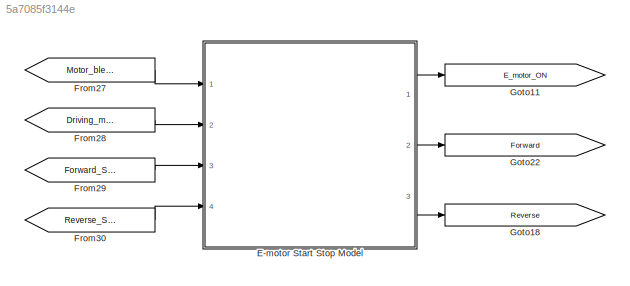
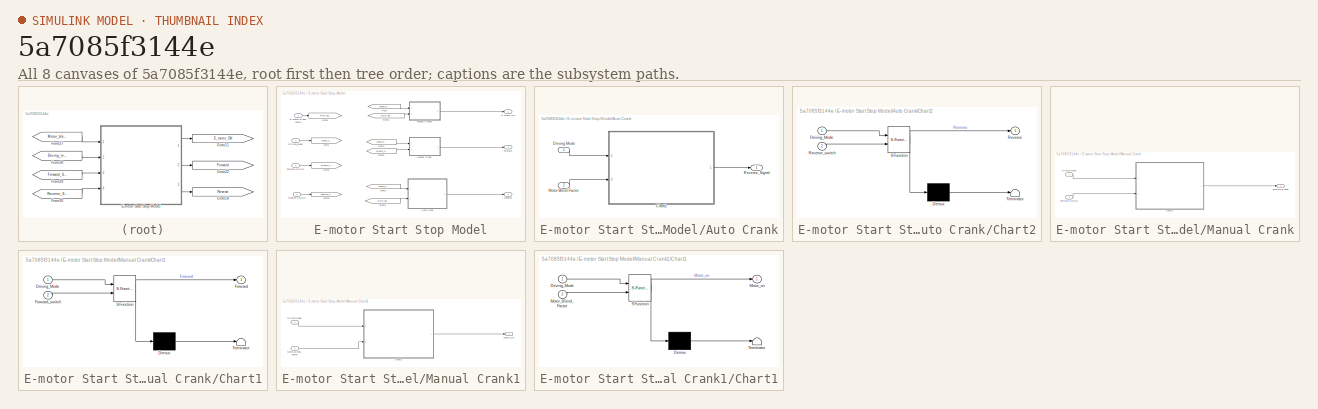
[diagram: thumbnail index - all 8 canvases of the model, root first then tree order]
MODEL slx_5a7085f3144e
KIND model
CONFIG AbsTol = auto
CONFIG FixedStep = auto
CONFIG MaxStep = auto
CONFIG MinStep = auto
CONFIG RelTol = 1e-3
CONFIG SampleTimeConstraint = Unconstrained
CONFIG Solver = ode45
CONFIG SolverMode = Auto
CONFIG SolverName = ode45
CONFIG StartTime = 0.0
CONFIG StopTime = 10.0
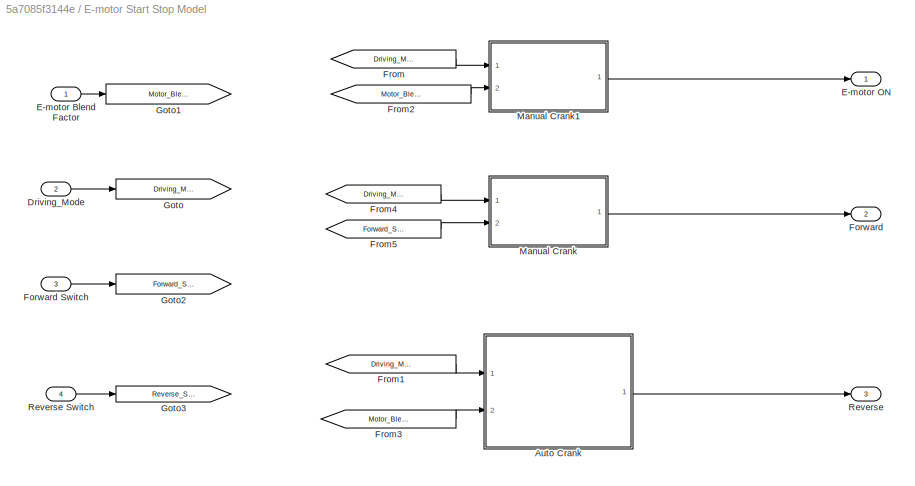
BLOCK [SubSystem] E-motor Start Stop Model
  Ports = [4, 3]
  RequestExecContextInheritance = off
BLOCK [SubSystem] E-motor Start Stop Model/Auto Crank
  Ports = [2, 1]
  RequestExecContextInheritance = off
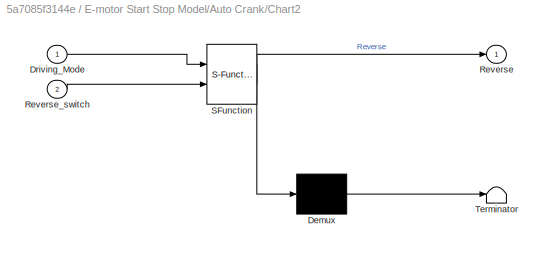
BLOCK [SubSystem] E-motor Start Stop Model/Auto Crank/Chart2
  ErrorFcn = Stateflow.Translate.translate
  PermitHierarchicalResolution = ExplicitOnly
  Ports = [2, 1]
  RequestExecContextInheritance = off
  SFBlockType = Chart
  TreatAsAtomicUnit = on
BLOCK [Demux] E-motor Start Stop Model/Auto Crank/Chart2/ Demux 
  Outputs = 1
  Ports = [1, 1]
BLOCK [S-Function] E-motor Start Stop Model/Auto Crank/Chart2/ SFunction 
  EnableBusSupport = on
  FunctionName = sf_sfun
  PortCounts = [2 2]
  Ports = [2, 2]
  Tag = Stateflow S-Function validate_emotor_start_stop 2
BLOCK [Terminator] E-motor Start Stop Model/Auto Crank/Chart2/ Terminator 
BLOCK [Inport] E-motor Start Stop Model/Auto Crank/Chart2/Driving_Mode
  IconDisplay = Port number
BLOCK [Outport] E-motor Start Stop Model/Auto Crank/Chart2/Reverse
  IconDisplay = Port number
BLOCK [Inport] E-motor Start Stop Model/Auto Crank/Chart2/Reverse_switch
  IconDisplay = Port number
  Port = 2
BLOCK [Inport] E-motor Start Stop Model/Auto Crank/Driving Mode
  IconDisplay = Port number
BLOCK [Inport] E-motor Start Stop Model/Auto Crank/Motor Blend Factor
  IconDisplay = Port number
  Port = 2
BLOCK [Outport] E-motor Start Stop Model/Auto Crank/Reverse_Signal
  IconDisplay = Port number
BLOCK [Inport] E-motor Start Stop Model/Driving_Mode
  IconDisplay = Port number
  Port = 2
BLOCK [Inport] E-motor Start Stop Model/E-motor Blend Factor
  IconDisplay = Port number
BLOCK [Outport] E-motor Start Stop Model/E-motor ON
  IconDisplay = Port number
BLOCK [Outport] E-motor Start Stop Model/Forward
  IconDisplay = Port number
  Port = 2
BLOCK [Inport] E-motor Start Stop Model/Forward Switch
  IconDisplay = Port number
  Port = 3
BLOCK [From] E-motor Start Stop Model/From
  GotoTag = Driving_Mode
BLOCK [From] E-motor Start Stop Model/From1
  GotoTag = Driving_Mode
BLOCK [From] E-motor Start Stop Model/From2
  GotoTag = Motor_Blend_Factor
BLOCK [From] E-motor Start Stop Model/From3
  GotoTag = Motor_Blend_Factor
BLOCK [From] E-motor Start Stop Model/From4
  GotoTag = Driving_Mode
BLOCK [From] E-motor Start Stop Model/From5
  GotoTag = Forward_Switch
BLOCK [Goto] E-motor Start Stop Model/Goto
  GotoTag = Driving_Mode
BLOCK [Goto] E-motor Start Stop Model/Goto1
  GotoTag = Motor_Blend_Factor
BLOCK [Goto] E-motor Start Stop Model/Goto2
  GotoTag = Forward_Switch
BLOCK [Goto] E-motor Start Stop Model/Goto3
  GotoTag = Reverse_Switch
BLOCK [SubSystem] E-motor Start Stop Model/Manual Crank
  Ports = [2, 1]
  RequestExecContextInheritance = off
BLOCK [SubSystem] E-motor Start Stop Model/Manual Crank/Chart1
  ErrorFcn = Stateflow.Translate.translate
  PermitHierarchicalResolution = ExplicitOnly
  Ports = [2, 1]
  RequestExecContextInheritance = off
  SFBlockType = Chart
  TreatAsAtomicUnit = on
BLOCK [Demux] E-motor Start Stop Model/Manual Crank/Chart1/ Demux 
  Outputs = 1
  Ports = [1, 1]
BLOCK [S-Function] E-motor Start Stop Model/Manual Crank/Chart1/ SFunction 
  EnableBusSupport = on
  FunctionName = sf_sfun
  PortCounts = [2 2]
  Ports = [2, 2]
  Tag = Stateflow S-Function validate_emotor_start_stop 5
BLOCK [Terminator] E-motor Start Stop Model/Manual Crank/Chart1/ Terminator 
BLOCK [Inport] E-motor Start Stop Model/Manual Crank/Chart1/Driving_Mode
  IconDisplay = Port number
BLOCK [Outport] E-motor Start Stop Model/Manual Crank/Chart1/Forward
  IconDisplay = Port number
BLOCK [Inport] E-motor Start Stop Model/Manual Crank/Chart1/Forward_switch
  IconDisplay = Port number
  Port = 2
BLOCK [Inport] E-motor Start Stop Model/Manual Crank/Driving Mode
  IconDisplay = Port number
BLOCK [Inport] E-motor Start Stop Model/Manual Crank/Forward Switch
  IconDisplay = Port number
  Port = 2
BLOCK [Outport] E-motor Start Stop Model/Manual Crank/Forward_Signal
  IconDisplay = Port number
BLOCK [SubSystem] E-motor Start Stop Model/Manual Crank1
  Ports = [2, 1]
  RequestExecContextInheritance = off
BLOCK [SubSystem] E-motor Start Stop Model/Manual Crank1/Chart1
  ErrorFcn = Stateflow.Translate.translate
  PermitHierarchicalResolution = ExplicitOnly
  Ports = [2, 1]
  RequestExecContextInheritance = off
  SFBlockType = Chart
  TreatAsAtomicUnit = on
BLOCK [Demux] E-motor Start Stop Model/Manual Crank1/Chart1/ Demux 
  Outputs = 1
  Ports = [1, 1]
BLOCK [S-Function] E-motor Start Stop Model/Manual Crank1/Chart1/ SFunction 
  EnableBusSupport = on
  FunctionName = sf_sfun
  PortCounts = [2 2]
  Ports = [2, 2]
  Tag = Stateflow S-Function validate_emotor_start_stop 6
BLOCK [Terminator] E-motor Start Stop Model/Manual Crank1/Chart1/ Terminator 
BLOCK [Inport] E-motor Start Stop Model/Manual Crank1/Chart1/Driving_Mode
  IconDisplay = Port number
BLOCK [Inport] E-motor Start Stop Model/Manual Crank1/Chart1/Motor_Blend_Factor
  IconDisplay = Port number
  Port = 2
BLOCK [Outport] E-motor Start Stop Model/Manual Crank1/Chart1/Motor_on
  IconDisplay = Port number
BLOCK [Inport] E-motor Start Stop Model/Manual Crank1/Driving Mode
  IconDisplay = Port number
BLOCK [Inport] E-motor Start Stop Model/Manual Crank1/Motor_Blend_Factor
  IconDisplay = Port number
  Port = 2
BLOCK [Outport] E-motor Start Stop Model/Manual Crank1/Motor_ON
  IconDisplay = Port number
BLOCK [Outport] E-motor Start Stop Model/Reverse
  IconDisplay = Port number
  Port = 3
BLOCK [Inport] E-motor Start Stop Model/Reverse Switch
  IconDisplay = Port number
  Port = 4
BLOCK [From] From27
  GotoTag = Motor_blend_factor
BLOCK [From] From28
  GotoTag = Driving_mode
BLOCK [From] From29
  GotoTag = Forward_Switch
BLOCK [From] From30
  GotoTag = Reverse_Switch
BLOCK [Goto] Goto11
  GotoTag = E_motor_ON
BLOCK [Goto] Goto18
  GotoTag = Reverse
BLOCK [Goto] Goto22
  GotoTag = Forward
LINE E-motor Start Stop Model/Auto Crank/Chart2:1 -> E-motor Start Stop Model/Auto Crank/Reverse_Signal:1
LINE E-motor Start Stop Model/Auto Crank/Driving Mode:1 -> E-motor Start Stop Model/Auto Crank/Chart2:1
LINE E-motor Start Stop Model/Auto Crank/Motor Blend Factor:1 -> E-motor Start Stop Model/Auto Crank/Chart2:2
LINE E-motor Start Stop Model/Auto Crank:1 -> E-motor Start Stop Model/Reverse:1
LINE E-motor Start Stop Model/Driving_Mode:1 -> E-motor Start Stop Model/Goto:1
LINE E-motor Start Stop Model/E-motor Blend Factor:1 -> E-motor Start Stop Model/Goto1:1
LINE E-motor Start Stop Model/Forward Switch:1 -> E-motor Start Stop Model/Goto2:1
LINE E-motor Start Stop Model/From1:1 -> E-motor Start Stop Model/Auto Crank:1
LINE E-motor Start Stop Model/From2:1 -> E-motor Start Stop Model/Manual Crank1:2
LINE E-motor Start Stop Model/From3:1 -> E-motor Start Stop Model/Auto Crank:2
LINE E-motor Start Stop Model/From4:1 -> E-motor Start Stop Model/Manual Crank:1
LINE E-motor Start Stop Model/From5:1 -> E-motor Start Stop Model/Manual Crank:2
LINE E-motor Start Stop Model/From:1 -> E-motor Start Stop Model/Manual Crank1:1
LINE E-motor Start Stop Model/Manual Crank/Chart1:1 -> E-motor Start Stop Model/Manual Crank/Forward_Signal:1
LINE E-motor Start Stop Model/Manual Crank/Driving Mode:1 -> E-motor Start Stop Model/Manual Crank/Chart1:1
LINE E-motor Start Stop Model/Manual Crank/Forward Switch:1 -> E-motor Start Stop Model/Manual Crank/Chart1:2
LINE E-motor Start Stop Model/Manual Crank1/Chart1:1 -> E-motor Start Stop Model/Manual Crank1/Motor_ON:1
LINE E-motor Start Stop Model/Manual Crank1/Driving Mode:1 -> E-motor Start Stop Model/Manual Crank1/Chart1:1
LINE E-motor Start Stop Model/Manual Crank1/Motor_Blend_Factor:1 -> E-motor Start Stop Model/Manual Crank1/Chart1:2
LINE E-motor Start Stop Model/Manual Crank1:1 -> E-motor Start Stop Model/E-motor ON:1
LINE E-motor Start Stop Model/Manual Crank:1 -> E-motor Start Stop Model/Forward:1
LINE E-motor Start Stop Model/Reverse Switch:1 -> E-motor Start Stop Model/Goto3:1
LINE E-motor Start Stop Model:1 -> Goto11:1
LINE E-motor Start Stop Model:2 -> Goto22:1
LINE E-motor Start Stop Model:3 -> Goto18:1
LINE From27:1 -> E-motor Start Stop Model:1
LINE From28:1 -> E-motor Start Stop Model:2
LINE From29:1 -> E-motor Start Stop Model:3
LINE From30:1 -> E-motor Start Stop Model:4
CHART E-motor Start Stop Model/Auto Crank/Chart2 states=2 transitions=3
  STATE_LABEL 'REVERSE_ON\nduring: Reverse=1;'
  STATE_LABEL 'REVERSE_OFF\nduring: Reverse=0;\n'
CHART E-motor Start Stop Model/Manual Crank/Chart1 states=2 transitions=4
  STATE_LABEL 'FORWARD_ON\nduring: Forward=1;'
  STATE_LABEL 'FORWARD_OFF\nduring: Forward=0;\n'
CHART E-motor Start Stop Model/Manual Crank1/Chart1 states=2 transitions=5
  STATE_LABEL 'MOTOR_ON\nduring: Motor_on=1;'
  STATE_LABEL 'MOTOR_OFF\nduring: Motor_on=0;\n'
